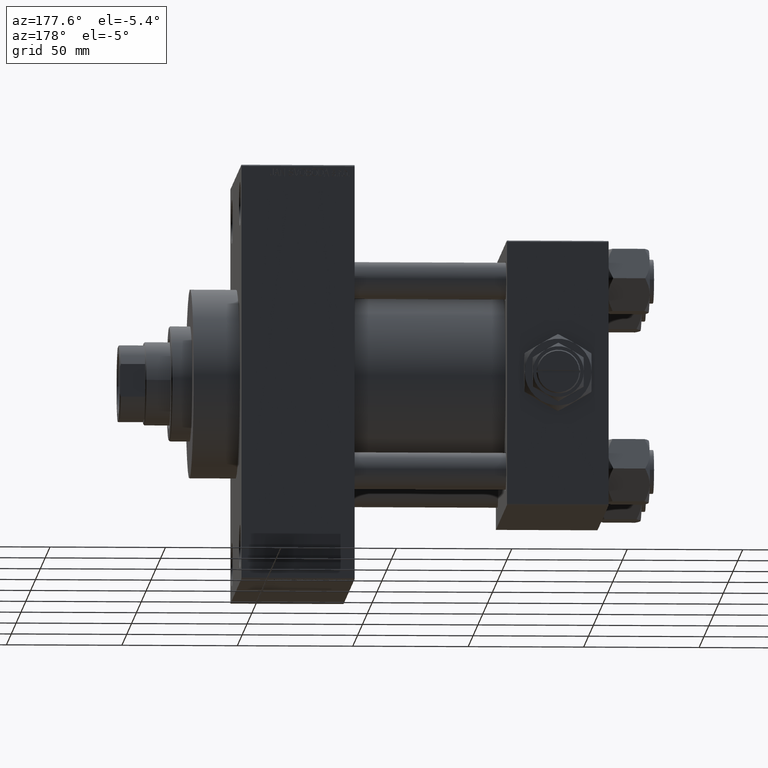
[diagram: clean part render]
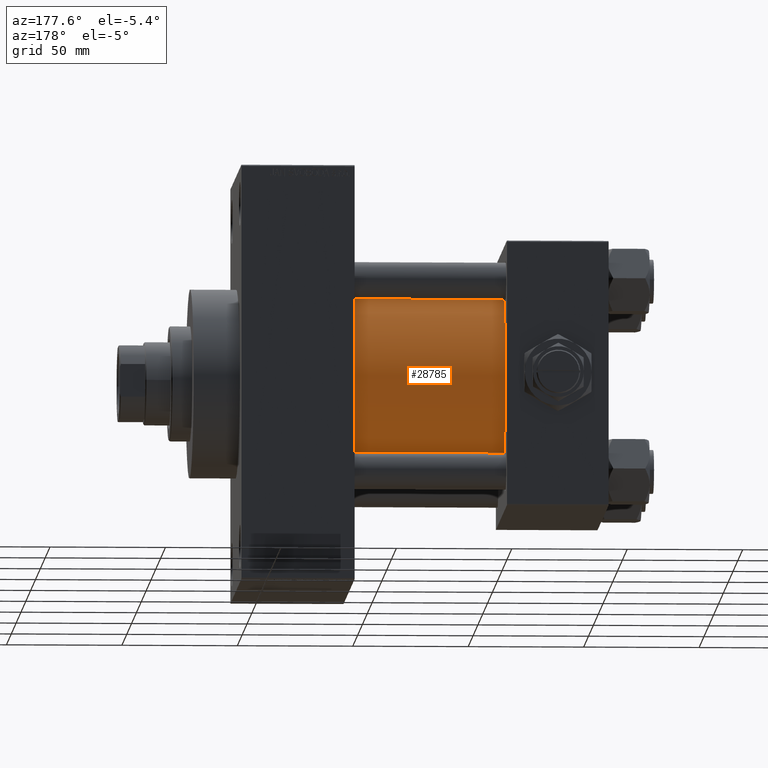
[diagram: same view with one face highlighted and labeled with its STEP entity id]
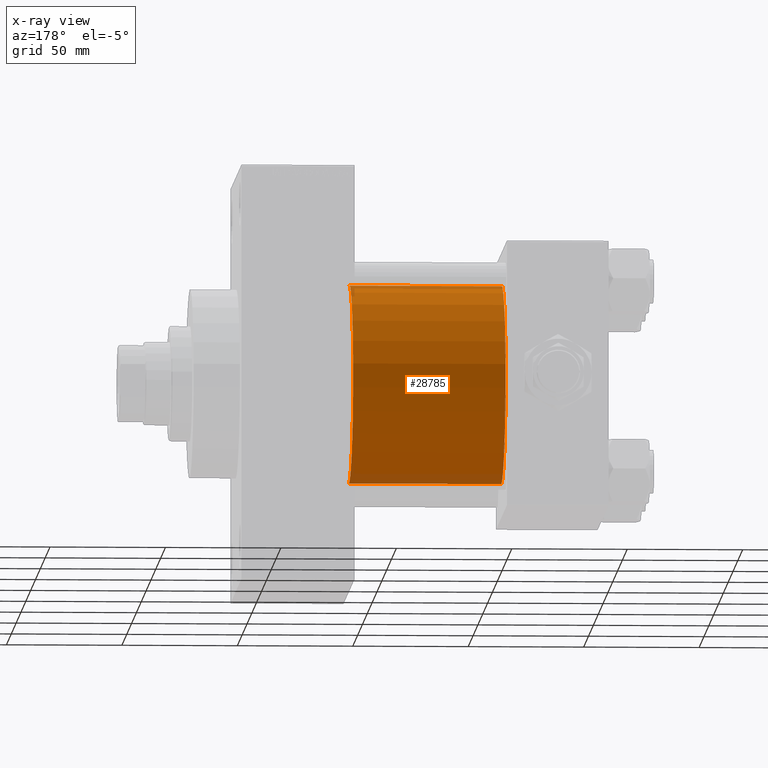
[diagram: x-ray of the same camera — body ghosted, the highlighted face saturated]
A machine part, auxiliary view. The second image highlights one B-rep face of the part: STEP entity #28785.
The next image is the same camera in x-ray: the body ghosted, the highlighted face saturated — about 7% of this face is hidden behind the body in this view.
In plain terms, the highlighted cylindrical surface (partial cylindrical patch) has radius 43 mm, axis along (-1, -0, -0).
Its self-contained STEP definition (entity closure, byte-faithful):
#987 = ORIENTED_EDGE ( 'NONE', *, *, #18664, .T. ) ;
#1343 = LINE ( 'NONE', #42633, #38224 ) ;
#5873 = CARTESIAN_POINT ( 'NONE',  ( 110.0000000000000000, -2.602085213965210642E-15, 0.000000000000000000 ) ) ;
#8357 = DIRECTION ( 'NONE',  ( -1.000000000000000000, -0.000000000000000000, -0.000000000000000000 ) ) ;
#9070 = DIRECTION ( 'NONE',  ( 0.000000000000000000, 0.000000000000000000, 1.000000000000000000 ) ) ;
#9186 = ORIENTED_EDGE ( 'NONE', *, *, #39100, .F. ) ;
#11096 = VERTEX_POINT ( 'NONE', #45201 ) ;
#13275 = AXIS2_PLACEMENT_3D ( 'NONE', #16669, #31914, #47180 ) ;
#13843 = CARTESIAN_POINT ( 'NONE',  ( 110.0000000000000000, 2.663896022368408223E-15, -43.00000000000000000 ) ) ;
#14584 = CARTESIAN_POINT ( 'NONE',  ( 44.00000000000000000, 2.663896022368408223E-15, -43.00000000000000000 ) ) ;
#15006 = CIRCLE ( 'NONE', #32559, 43.00000000000000000 ) ;
#16669 = CARTESIAN_POINT ( 'NONE',  ( 110.0000000000000000, -2.602085213965210642E-15, 0.000000000000000000 ) ) ;
#17835 = ORIENTED_EDGE ( 'NONE', *, *, #26668, .F. ) ;
#18664 = EDGE_CURVE ( 'NONE', #22898, #22972, #1343, .T. ) ;
#18686 = EDGE_LOOP ( 'NONE', ( #9186, #987, #41665, #17835 ) ) ;
#20584 = CARTESIAN_POINT ( 'NONE',  ( 44.00000000000000000, -2.602085213965210642E-15, 0.000000000000000000 ) ) ;
#22898 = VERTEX_POINT ( 'NONE', #13843 ) ;
#22972 = VERTEX_POINT ( 'NONE', #14584 ) ;
#24868 = VERTEX_POINT ( 'NONE', #33767 ) ;
#25641 = DIRECTION ( 'NONE',  ( -1.000000000000000000, -0.000000000000000000, -0.000000000000000000 ) ) ;
#25889 = DIRECTION ( 'NONE',  ( 0.000000000000000000, 0.000000000000000000, 1.000000000000000000 ) ) ;
#26668 = EDGE_CURVE ( 'NONE', #11096, #24868, #47608, .T. ) ;
#28168 = VECTOR ( 'NONE', #39354, 1000.000000000000000 ) ;
#28785 = ADVANCED_FACE ( 'NONE', ( #29125 ), #48660, .T. ) ;
#29125 = FACE_OUTER_BOUND ( 'NONE', #18686, .T. ) ;
#31914 = DIRECTION ( 'NONE',  ( 1.000000000000000000, 0.000000000000000000, 0.000000000000000000 ) ) ;
#32559 = AXIS2_PLACEMENT_3D ( 'NONE', #20584, #40581, #9070 ) ;
#33767 = CARTESIAN_POINT ( 'NONE',  ( 44.00000000000000000, -2.602085213965210642E-15, 43.00000000000000000 ) ) ;
#34842 = CIRCLE ( 'NONE', #13275, 43.00000000000000000 ) ;
#36138 = AXIS2_PLACEMENT_3D ( 'NONE', #5873, #25641, #25889 ) ;
#38224 = VECTOR ( 'NONE', #8357, 1000.000000000000000 ) ;
#39100 = EDGE_CURVE ( 'NONE', #22898, #11096, #34842, .T. ) ;
#39354 = DIRECTION ( 'NONE',  ( -1.000000000000000000, -0.000000000000000000, -0.000000000000000000 ) ) ;
#40581 = DIRECTION ( 'NONE',  ( 1.000000000000000000, -0.000000000000000000, 0.000000000000000000 ) ) ;
#41665 = ORIENTED_EDGE ( 'NONE', *, *, #44756, .T. ) ;
#42633 = CARTESIAN_POINT ( 'NONE',  ( 110.0000000000000000, 2.663896022368408223E-15, -43.00000000000000000 ) ) ;
#43604 = CARTESIAN_POINT ( 'NONE',  ( 110.0000000000000000, -2.602085213965210642E-15, 43.00000000000000000 ) ) ;
#44756 = EDGE_CURVE ( 'NONE', #22972, #24868, #15006, .T. ) ;
#45201 = CARTESIAN_POINT ( 'NONE',  ( 110.0000000000000000, -2.602085213965210642E-15, 43.00000000000000000 ) ) ;
#47180 = DIRECTION ( 'NONE',  ( 0.000000000000000000, 0.000000000000000000, -1.000000000000000000 ) ) ;
#47608 = LINE ( 'NONE', #43604, #28168 ) ;
#48660 = CYLINDRICAL_SURFACE ( 'NONE', #36138, 43.00000000000000000 ) ;